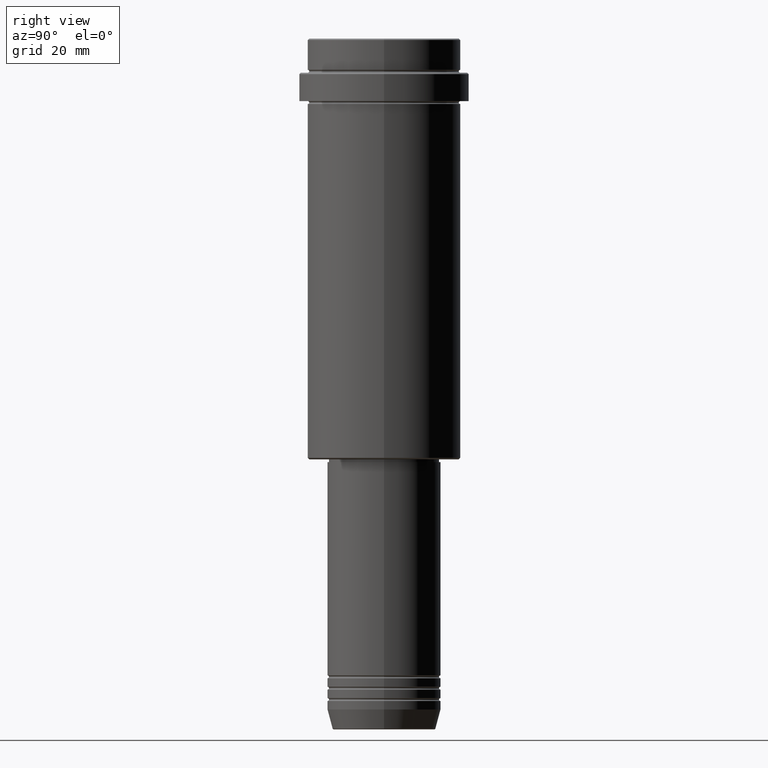
[diagram: clean part render]
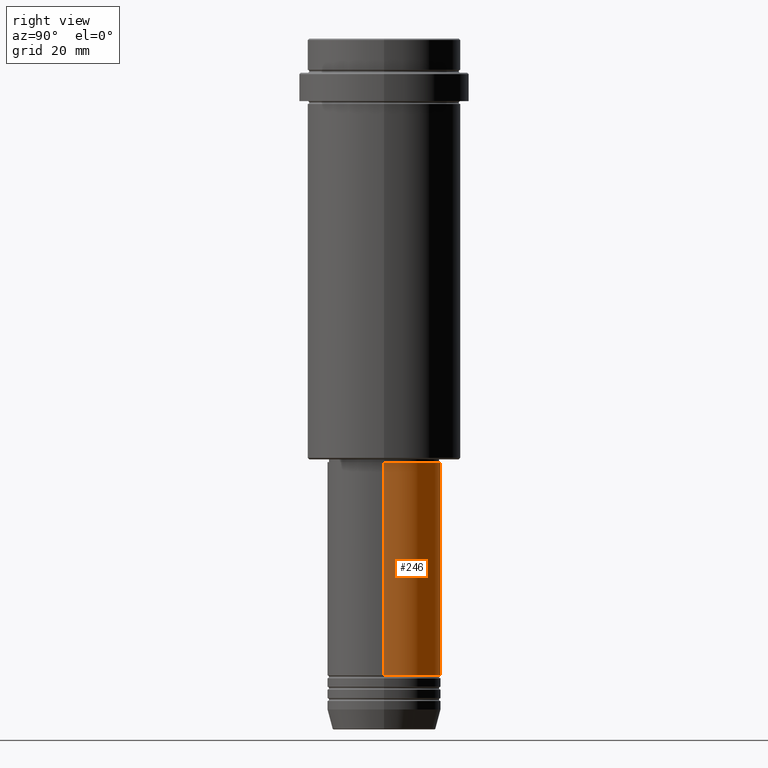
[diagram: same view with one face highlighted and labeled with its STEP entity id]
A machine part, right view. The second image highlights one B-rep face of the part: STEP entity #246.
In plain terms, the highlighted cylindrical surface (partial cylindrical patch) has radius 20 mm, axis along (-0, -0, 1).
Its self-contained STEP definition (entity closure, byte-faithful):
#29 = CARTESIAN_POINT ( 'NONE',  ( 0.000000000000000000, 0.000000000000000000, -223.9999999999999147 ) ) ;
#124 = ORIENTED_EDGE ( 'NONE', *, *, #1297, .F. ) ;
#146 = EDGE_LOOP ( 'NONE', ( #584, #334, #124, #1375 ) ) ;
#154 = VERTEX_POINT ( 'NONE', #526 ) ;
#206 = VERTEX_POINT ( 'NONE', #706 ) ;
#225 = CARTESIAN_POINT ( 'NONE',  ( 0.000000000000000000, 0.000000000000000000, 0.000000000000000000 ) ) ;
#246 = ADVANCED_FACE ( 'NONE', ( #635 ), #750, .T. ) ;
#291 = EDGE_CURVE ( 'NONE', #731, #206, #1397, .T. ) ;
#300 = CARTESIAN_POINT ( 'NONE',  ( -19.99999999999999645, 2.449293598294706119E-15, 0.000000000000000000 ) ) ;
#334 = ORIENTED_EDGE ( 'NONE', *, *, #291, .T. ) ;
#372 = DIRECTION ( 'NONE',  ( -0.000000000000000000, -0.000000000000000000, 1.000000000000000000 ) ) ;
#401 = LINE ( 'NONE', #1171, #1167 ) ;
#427 = DIRECTION ( 'NONE',  ( -0.000000000000000000, -0.000000000000000000, 1.000000000000000000 ) ) ;
#453 = DIRECTION ( 'NONE',  ( 1.000000000000000000, 0.000000000000000000, 0.000000000000000000 ) ) ;
#460 = DIRECTION ( 'NONE',  ( -0.000000000000000000, -0.000000000000000000, 1.000000000000000000 ) ) ;
#526 = CARTESIAN_POINT ( 'NONE',  ( 20.00000000000000000, 0.000000000000000000, -223.9999999999999147 ) ) ;
#562 = CIRCLE ( 'NONE', #957, 20.00000000000000000 ) ;
#583 = AXIS2_PLACEMENT_3D ( 'NONE', #1156, #372, #793 ) ;
#584 = ORIENTED_EDGE ( 'NONE', *, *, #1154, .T. ) ;
#635 = FACE_OUTER_BOUND ( 'NONE', #146, .T. ) ;
#653 = DIRECTION ( 'NONE',  ( 1.000000000000000000, 0.000000000000000000, 0.000000000000000000 ) ) ;
#706 = CARTESIAN_POINT ( 'NONE',  ( -19.99999999999999645, 2.449293598294706119E-15, -149.0000000000000284 ) ) ;
#731 = VERTEX_POINT ( 'NONE', #1314 ) ;
#750 = CYLINDRICAL_SURFACE ( 'NONE', #1091, 19.99999999999999645 ) ;
#793 = DIRECTION ( 'NONE',  ( 1.000000000000000000, 0.000000000000000000, 0.000000000000000000 ) ) ;
#845 = DIRECTION ( 'NONE',  ( -0.000000000000000000, -0.000000000000000000, 1.000000000000000000 ) ) ;
#877 = CARTESIAN_POINT ( 'NONE',  ( 19.99999999999999645, 0.000000000000000000, -149.0000000000000284 ) ) ;
#957 = AXIS2_PLACEMENT_3D ( 'NONE', #29, #460, #453 ) ;
#1054 = CIRCLE ( 'NONE', #583, 19.99999999999999645 ) ;
#1091 = AXIS2_PLACEMENT_3D ( 'NONE', #225, #427, #653 ) ;
#1107 = VERTEX_POINT ( 'NONE', #877 ) ;
#1154 = EDGE_CURVE ( 'NONE', #154, #731, #562, .T. ) ;
#1156 = CARTESIAN_POINT ( 'NONE',  ( 0.000000000000000000, 0.000000000000000000, -149.0000000000000284 ) ) ;
#1167 = VECTOR ( 'NONE', #1277, 1000.000000000000000 ) ;
#1171 = CARTESIAN_POINT ( 'NONE',  ( 19.99999999999999645, 0.000000000000000000, 0.000000000000000000 ) ) ;
#1257 = VECTOR ( 'NONE', #845, 1000.000000000000000 ) ;
#1277 = DIRECTION ( 'NONE',  ( -0.000000000000000000, -0.000000000000000000, 1.000000000000000000 ) ) ;
#1297 = EDGE_CURVE ( 'NONE', #1107, #206, #1054, .T. ) ;
#1314 = CARTESIAN_POINT ( 'NONE',  ( -20.00000000000000000, 2.449293598294706513E-15, -223.9999999999999147 ) ) ;
#1375 = ORIENTED_EDGE ( 'NONE', *, *, #1408, .F. ) ;
#1397 = LINE ( 'NONE', #300, #1257 ) ;
#1408 = EDGE_CURVE ( 'NONE', #154, #1107, #401, .T. ) ;